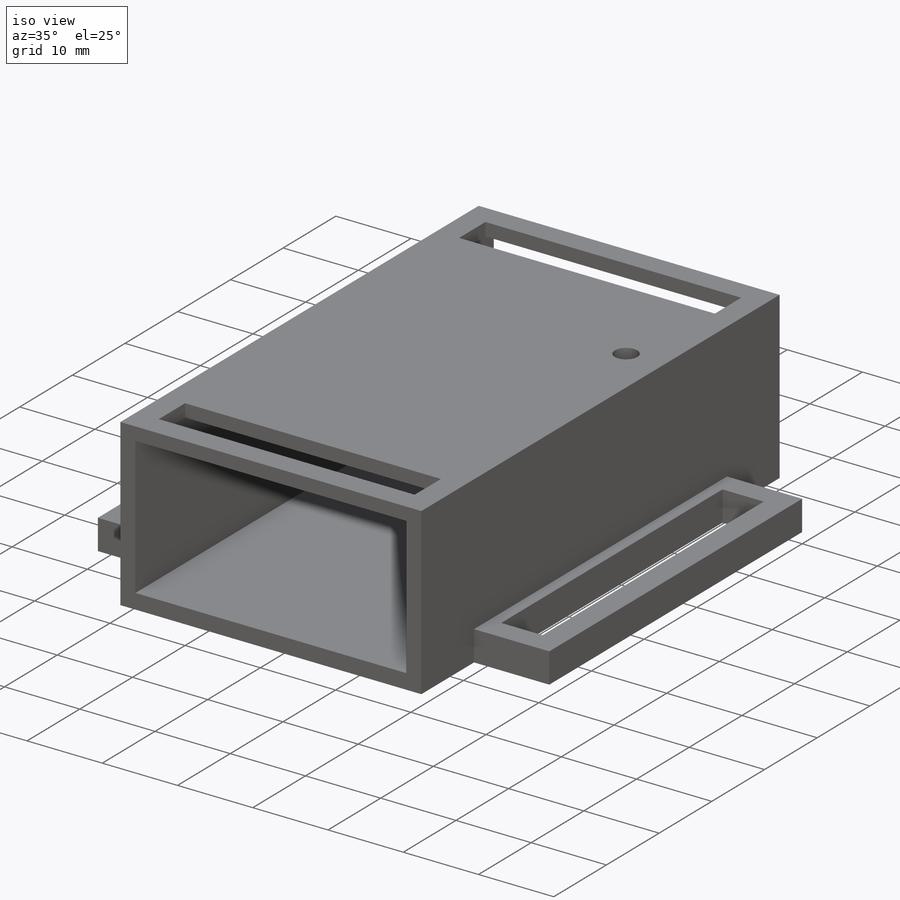
[diagram: iso view]
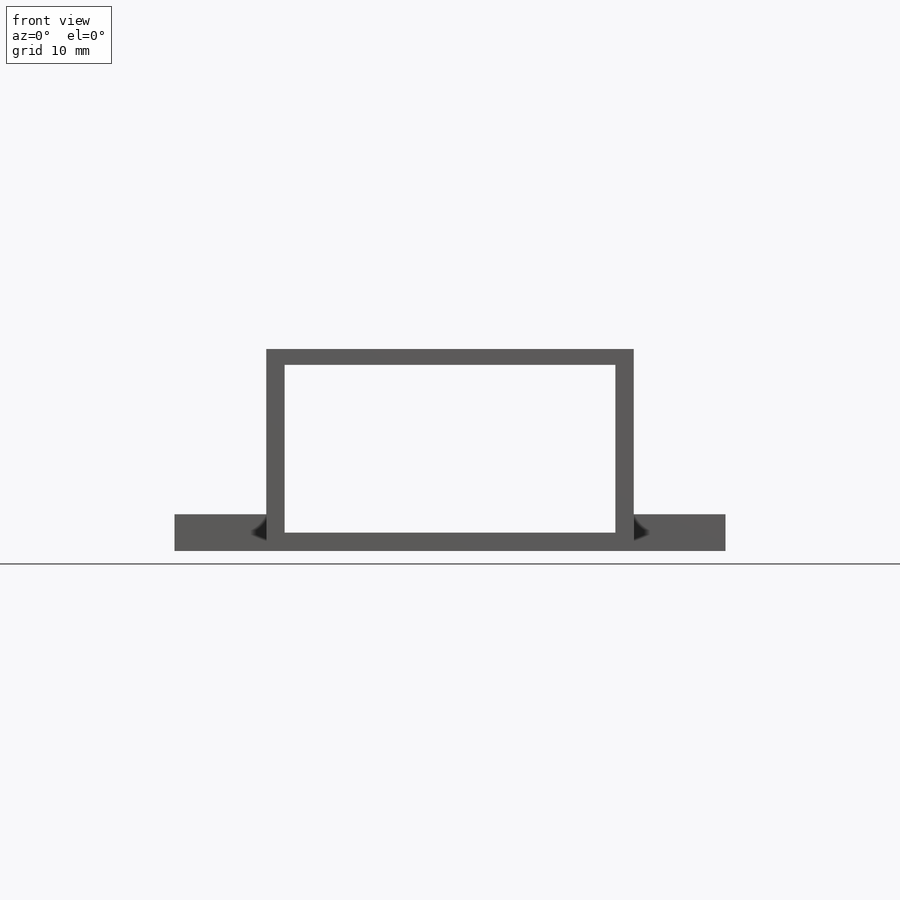
[diagram: front view]
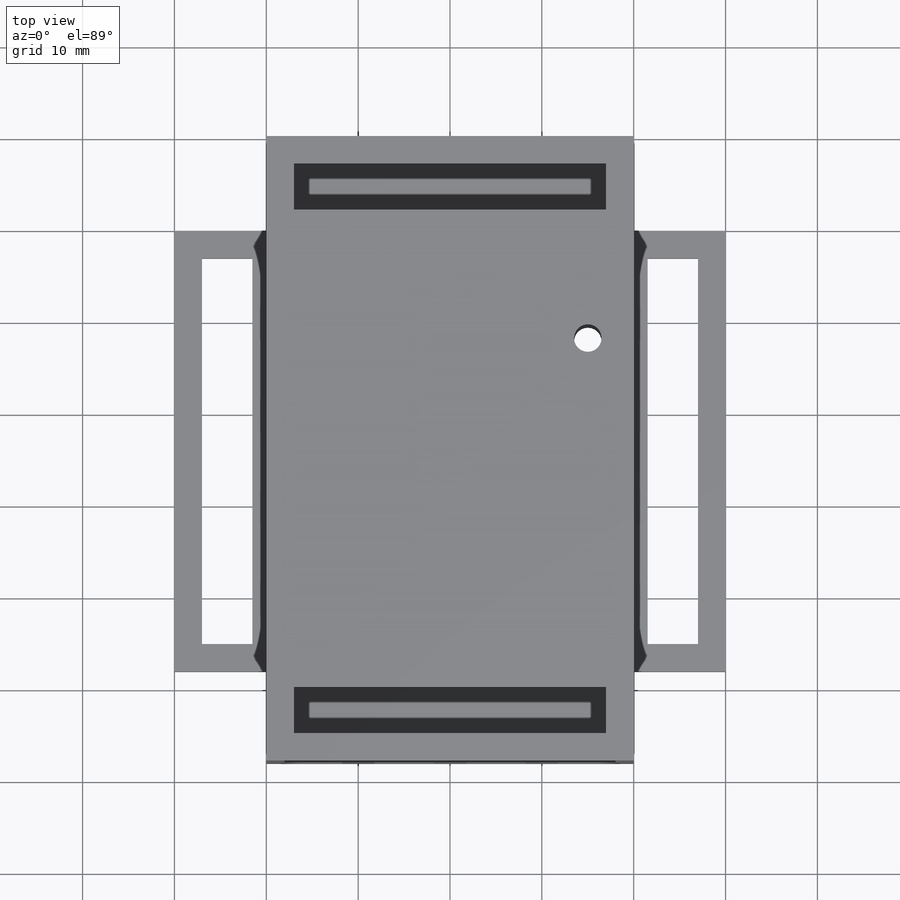
[diagram: top view]
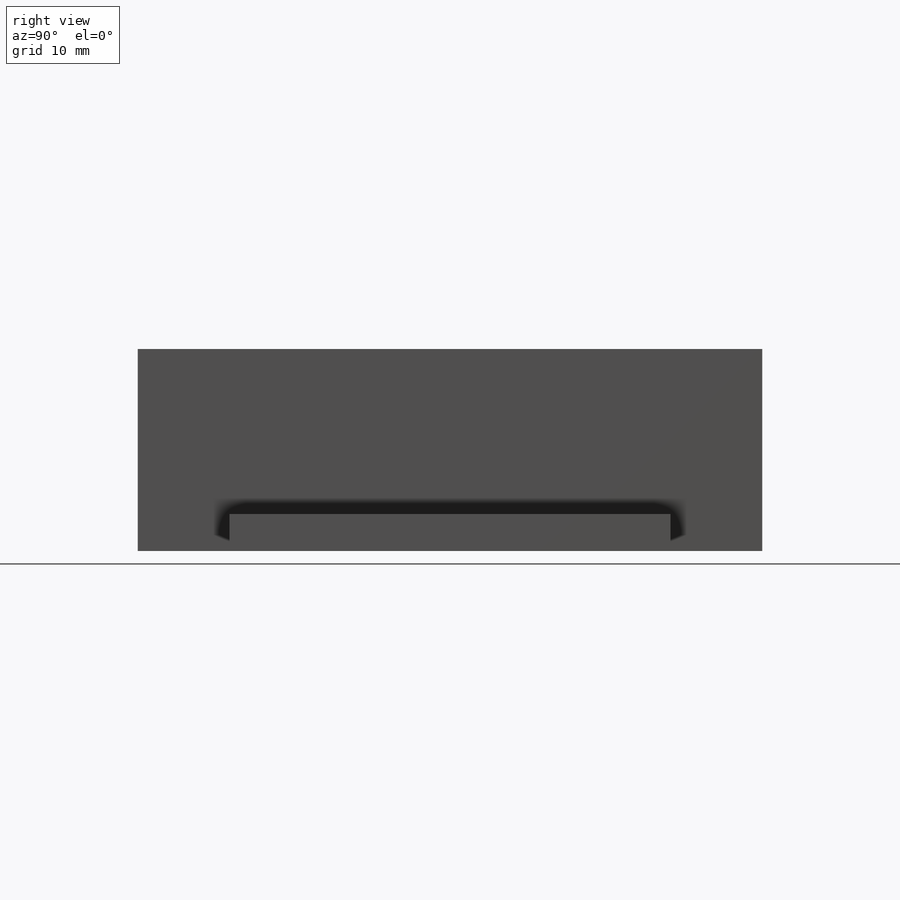
[diagram: right view]
SOLIDWORKS PART (.sldprt)
format: sldprt  version: not decoded by parser v0  size: 212,480 bytes
history: native  units: mm
features: sketch x5, cut_extrude x3, extrude x2, mirror x2, material x1, plane x1 (+12 scaffold rows collapsed)
feature tree (26):
  scaffold x12  (default folders/planes/origin — collapsed)
  material  "Material <not specified>"
  sketch  "Sketch1"  dims[c1.D4=~48.080466mm c1.D5=3.0mm c1.D1=70.0mm c1.D2=40.0mm c2.D1=68.0mm c2.D2=40.0mm c2.D3=22.0mm c2.D4=5.0mm c2.D5=~8.901675mm]
  extrude  "Boss-Extrude1"  Depth=22mm
  sketch  "Sketch2"  dims[c1.D1=2.0mm c1.D2=2.0mm c1.D3=2.0mm c1.D4=0.0mm c1.D5=36.0mm c2.D4=0.0mm c2.D5=36.0mm c3.D4=0.0mm c3.D5=36.0mm c4.D4=~18.265871mm]
  cut_extrude  "Cut-Extrude1"  [1 undecoded]
  sketch  "Sketch3"  dims[D1=3.0mm D2=3.0mm D3=5.0mm D4=~62.933934mm]
  cut_extrude  "Cut-Extrude2"  Depth=2mm
  sketch  "Sketch6"  dims[D1=10.0mm D2=4.0mm D3=10.0mm D4=4.0mm D5=48.0mm]
  extrude  "Boss-Extrude3"  Depth=10mm
  sketch  "Sketch7"  dims[c1.D1=~39.946231mm c1.D2=~5.490891mm c2.D1=3.0mm c2.D2=3.0mm c2.D3=3.0mm]
  cut_extrude  "Cut-Extrude4"  Depth=10mm
  plane  "Plane1"  Offset=20mm
  mirror  "Mirror1"
  mirror  "Mirror2"
decode coverage: 9 of 12 modeling features carry decoded parameters
note: ~ marks probable driven/reference dimensions
note: 1 parameter value undecoded
note: suppression state not decoded; provenance and decode notes live in map.json
